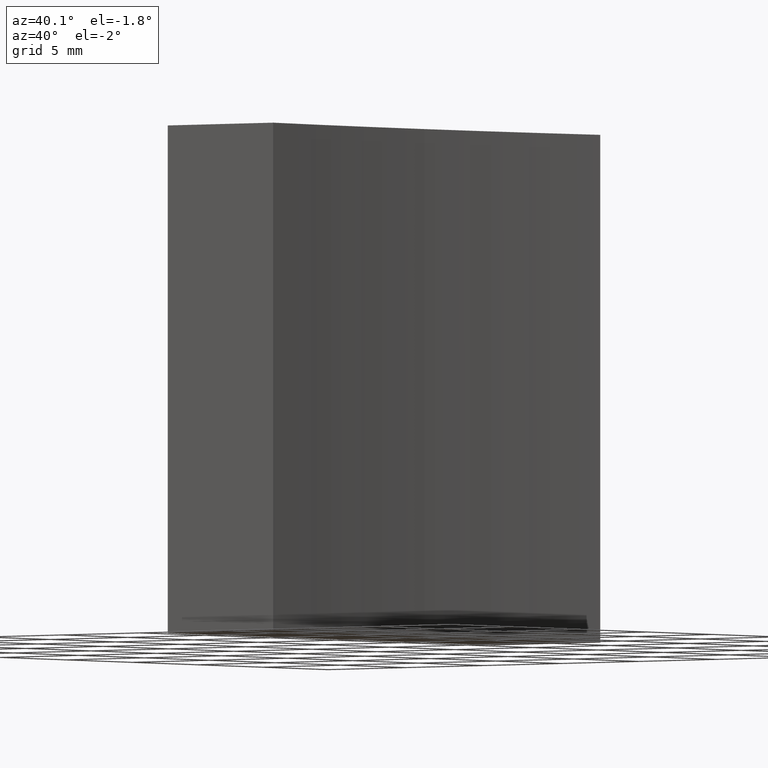
[diagram: clean part render]
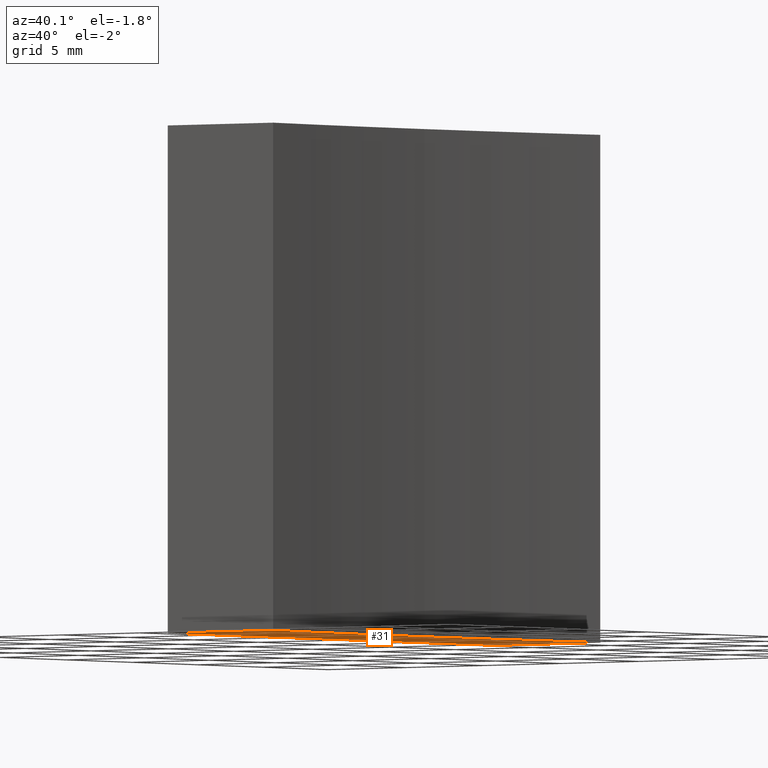
[diagram: same view with one face highlighted and labeled with its STEP entity id]
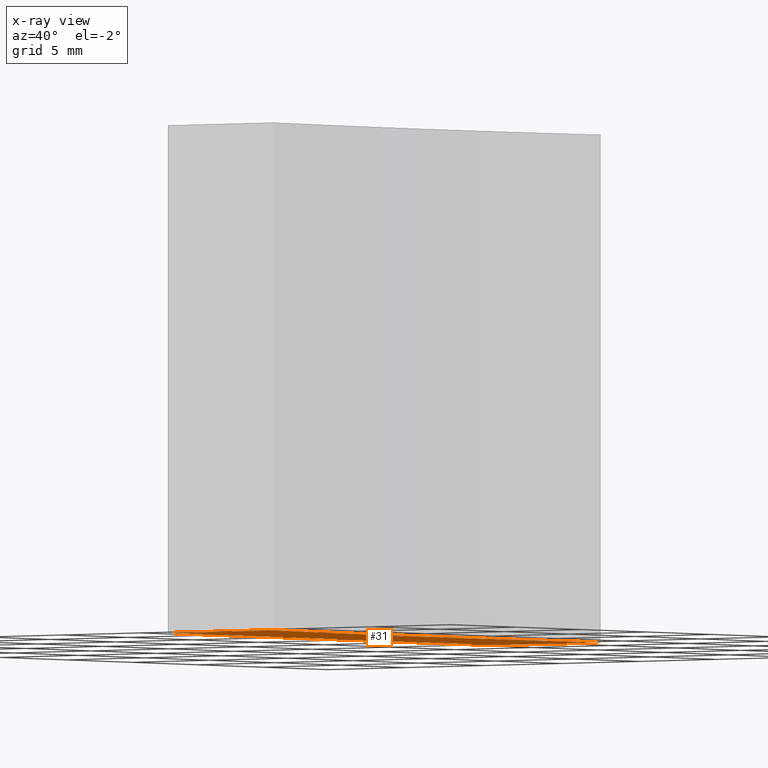
[diagram: x-ray of the same camera — body ghosted, the highlighted face saturated]
A machine part, auxiliary view. The second image highlights one B-rep face of the part: STEP entity #31.
The next image is the same camera in x-ray: the body ghosted, the highlighted face saturated — about 0% of this face is hidden behind the body in this view.
In plain terms, the highlighted planar face has unit normal (0, 0, 1).
Its self-contained STEP definition (entity closure, byte-faithful):
#1 = AXIS2_PLACEMENT_3D ( 'NONE', #191, #187, #10 ) ;
#10 = DIRECTION ( 'NONE',  ( 1.000000000000000000, 0.0000000000000000000, 0.0000000000000000000 ) ) ;
#15 = DIRECTION ( 'NONE',  ( 1.000000000000000000, 0.0000000000000000000, -0.0000000000000000000 ) ) ;
#20 = DIRECTION ( 'NONE',  ( 1.000000000000000000, -0.0000000000000000000, -0.0000000000000000000 ) ) ;
#31 = ADVANCED_FACE ( 'NONE', ( #122 ), #201, .F. ) ;
#33 = VECTOR ( 'NONE', #229, 1000.000000000000000 ) ;
#38 = EDGE_CURVE ( 'NONE', #92, #207, #66, .T. ) ;
#46 = DIRECTION ( 'NONE',  ( -0.0000000000000000000, -0.0000000000000000000, -1.000000000000000000 ) ) ;
#50 = VECTOR ( 'NONE', #20, 1000.000000000000000 ) ;
#54 = DIRECTION ( 'NONE',  ( 0.0000000000000000000, 0.0000000000000000000, 1.000000000000000000 ) ) ;
#56 = CARTESIAN_POINT ( 'NONE',  ( 291.4914614961174900, 54.35792926776711900, 0.0000000000000000000 ) ) ;
#61 = CARTESIAN_POINT ( 'NONE',  ( 290.7071356610396700, 66.85792926776684900, 0.0000000000000000000 ) ) ;
#62 = CARTESIAN_POINT ( 'NONE',  ( 284.7071356312820900, 54.35792926776707600, 0.0000000000000000000 ) ) ;
#66 = LINE ( 'NONE', #74, #204 ) ;
#68 = ORIENTED_EDGE ( 'NONE', *, *, #38, .F. ) ;
#74 = CARTESIAN_POINT ( 'NONE',  ( 284.7071356312820900, 79.35792926776707600, 0.0000000000000000000 ) ) ;
#78 = CARTESIAN_POINT ( 'NONE',  ( 291.4914614961175500, 79.35792926776707600, 0.0000000000000000000 ) ) ;
#80 = CARTESIAN_POINT ( 'NONE',  ( 390.7071356610396700, 66.85792926776684900, 0.0000000000000000000 ) ) ;
#85 = EDGE_CURVE ( 'NONE', #210, #104, #98, .T. ) ;
#86 = EDGE_LOOP ( 'NONE', ( #138, #124, #68, #161, #158 ) ) ;
#89 = DIRECTION ( 'NONE',  ( -1.000000000000000000, -0.0000000000000000000, -0.0000000000000000000 ) ) ;
#92 = VERTEX_POINT ( 'NONE', #78 ) ;
#98 = LINE ( 'NONE', #224, #50 ) ;
#101 = CARTESIAN_POINT ( 'NONE',  ( 284.7071356312820900, 66.85792926776707600, 0.0000000000000000000 ) ) ;
#104 = VERTEX_POINT ( 'NONE', #56 ) ;
#113 = AXIS2_PLACEMENT_3D ( 'NONE', #129, #54, #15 ) ;
#122 = FACE_OUTER_BOUND ( 'NONE', #86, .T. ) ;
#124 = ORIENTED_EDGE ( 'NONE', *, *, #237, .F. ) ;
#129 = CARTESIAN_POINT ( 'NONE',  ( 390.7071356610396700, 66.85792926776684900, 0.0000000000000000000 ) ) ;
#138 = ORIENTED_EDGE ( 'NONE', *, *, #85, .F. ) ;
#151 = CARTESIAN_POINT ( 'NONE',  ( 284.7071356312820900, 79.35792926776707600, 0.0000000000000000000 ) ) ;
#158 = ORIENTED_EDGE ( 'NONE', *, *, #208, .F. ) ;
#161 = ORIENTED_EDGE ( 'NONE', *, *, #188, .F. ) ;
#163 = AXIS2_PLACEMENT_3D ( 'NONE', #80, #46, #174 ) ;
#174 = DIRECTION ( 'NONE',  ( 1.000000000000000000, 0.0000000000000000000, 0.0000000000000000000 ) ) ;
#176 = LINE ( 'NONE', #101, #33 ) ;
#178 = CIRCLE ( 'NONE', #1, 99.99999999999997200 ) ;
#187 = DIRECTION ( 'NONE',  ( -0.0000000000000000000, -0.0000000000000000000, -1.000000000000000000 ) ) ;
#188 = EDGE_CURVE ( 'NONE', #198, #92, #217, .T. ) ;
#191 = CARTESIAN_POINT ( 'NONE',  ( 390.7071356610396700, 66.85792926776684900, 0.0000000000000000000 ) ) ;
#198 = VERTEX_POINT ( 'NONE', #61 ) ;
#201 = PLANE ( 'NONE',  #113 ) ;
#204 = VECTOR ( 'NONE', #89, 1000.000000000000000 ) ;
#207 = VERTEX_POINT ( 'NONE', #151 ) ;
#208 = EDGE_CURVE ( 'NONE', #104, #198, #178, .T. ) ;
#210 = VERTEX_POINT ( 'NONE', #62 ) ;
#217 = CIRCLE ( 'NONE', #163, 99.99999999999997200 ) ;
#224 = CARTESIAN_POINT ( 'NONE',  ( 291.4914614961174900, 54.35792926776707600, 0.0000000000000000000 ) ) ;
#229 = DIRECTION ( 'NONE',  ( -0.0000000000000000000, -1.000000000000000000, -0.0000000000000000000 ) ) ;
#237 = EDGE_CURVE ( 'NONE', #207, #210, #176, .T. ) ;